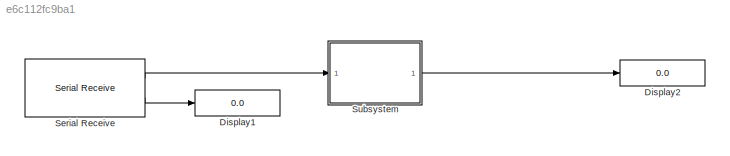
MODEL slx_e6c112fc9ba1
KIND model
CONFIG AbsTol = auto
CONFIG EnableMultiTasking = on
CONFIG FixedStep = auto
CONFIG MaxStep = auto
CONFIG MinStep = auto
CONFIG RelTol = 1e-3
CONFIG SampleTimeConstraint = Unconstrained
CONFIG Solver = FixedStepAuto
CONFIG SolverName = FixedStepAuto
CONFIG StartTime = 0.0
CONFIG StopTime = inf
BLOCK [Display] Display1
  Decimation = 1
  Ports = [1]
BLOCK [Display] Display2
  Decimation = 1
  Ports = [1]
BLOCK [Reference] Serial Receive  REF=arduinolib/Serial Receive
  Ports = [0, 2]
  SourceBlock = arduinolib/Serial Receive
  SourceProductBaseCode = ARDUINO
  SourceType = Arduino Serial Receive
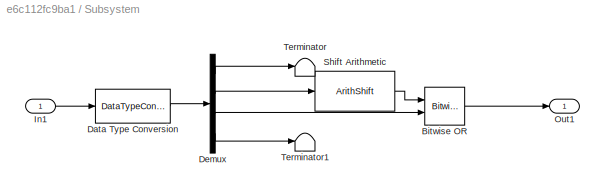
BLOCK [SubSystem] Subsystem
  Ports = [1, 1]
  RequestExecContextInheritance = off
BLOCK [Reference] Subsystem/Bitwise OR  REF=simulink/Logic and Bit
Operations/Bitwise
Operator
  Ports = [2, 1]
  SourceBlock = simulink/Logic and Bit\nOperations/Bitwise\nOperator
  SourceProductBaseCode = SL
  SourceType = Bitwise Operator
BLOCK [DataTypeConversion] Subsystem/Data Type Conversion
  OutDataTypeStr = int16
  RndMeth = Floor
  SaturateOnIntegerOverflow = off
BLOCK [Demux] Subsystem/Demux
  Ports = [1, 4]
BLOCK [Inport] Subsystem/In1
BLOCK [Outport] Subsystem/Out1
BLOCK [ArithShift] Subsystem/Shift Arithmetic
  BitShiftNumber = -8
  InputPortMap = u0
  Ports = [1, 1]
BLOCK [Terminator] Subsystem/Terminator
BLOCK [Terminator] Subsystem/Terminator1
LINE Serial Receive:1 -> Subsystem:1
LINE Serial Receive:2 -> Display1:1
LINE Subsystem/Bitwise OR:1 -> Subsystem/Out1:1
LINE Subsystem/Data Type Conversion:1 -> Subsystem/Demux:1
LINE Subsystem/Demux:1 -> Subsystem/Terminator:1
LINE Subsystem/Demux:2 -> Subsystem/Shift Arithmetic:1
LINE Subsystem/Demux:3 -> Subsystem/Bitwise OR:2
LINE Subsystem/Demux:4 -> Subsystem/Terminator1:1
LINE Subsystem/In1:1 -> Subsystem/Data Type Conversion:1
LINE Subsystem/Shift Arithmetic:1 -> Subsystem/Bitwise OR:1
LINE Subsystem:1 -> Display2:1
